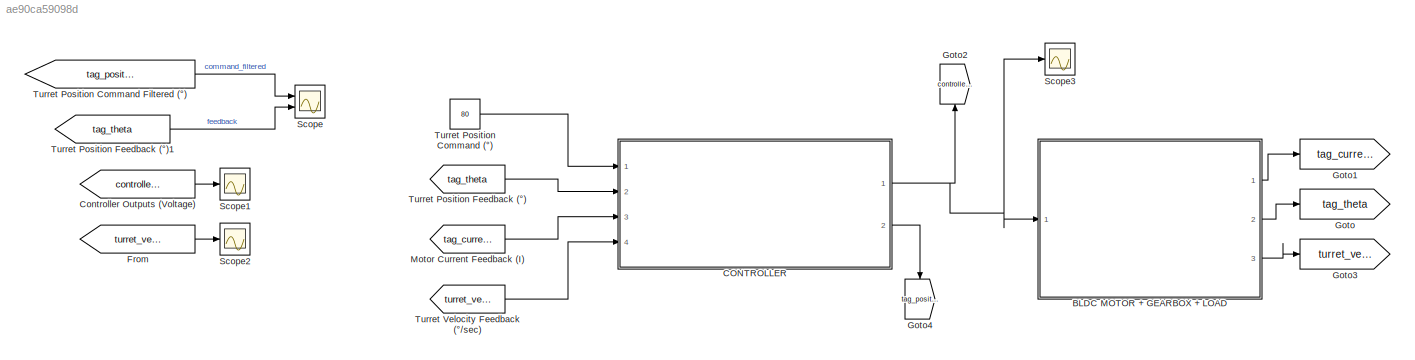
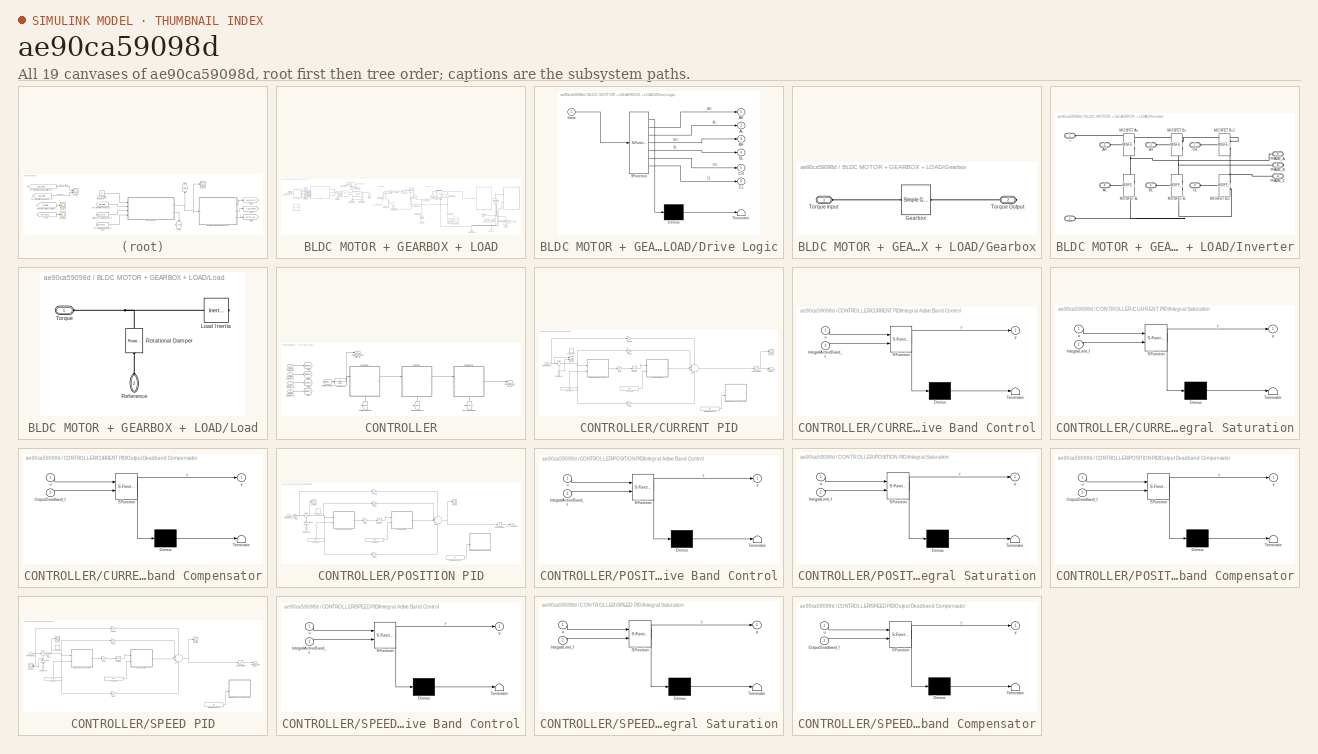
[diagram: thumbnail index - all 19 canvases of the model, root first then tree order]
MODEL slx_ae90ca59098d
KIND model
CONFIG AbsTol = auto
CONFIG EnableMultiTasking = off
CONFIG FixedStep = auto
CONFIG InitFcn = load('param_motor.mat');\nload('param_controller_2.mat');
CONFIG MaxStep = auto
CONFIG MinStep = auto
CONFIG RelTol = 1e-3
CONFIG SampleTimeConstraint = Unconstrained
CONFIG SolverName = VariableStepAuto
CONFIG StartTime = 0.0
CONFIG StopTime = 10
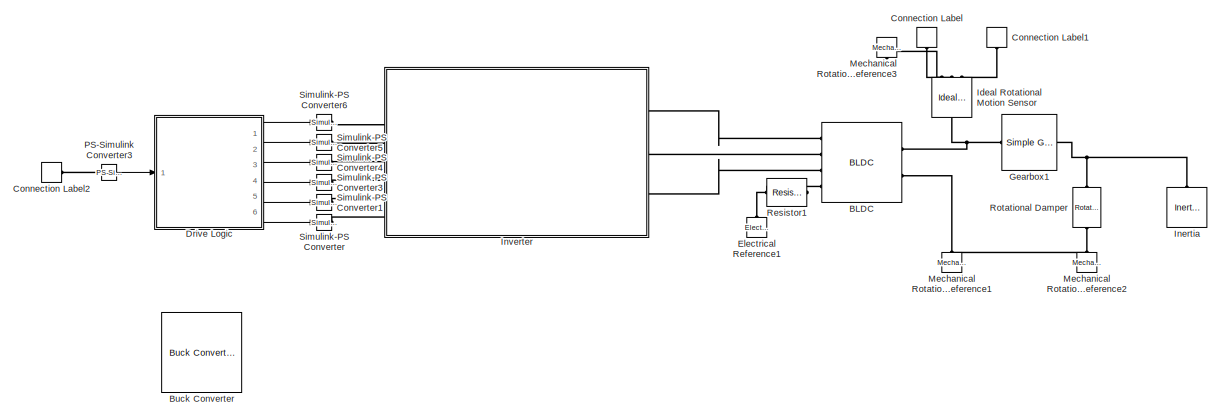
[diagram: BLDC MOTOR + GEARBOX + LOAD - part 1/3, top left region]
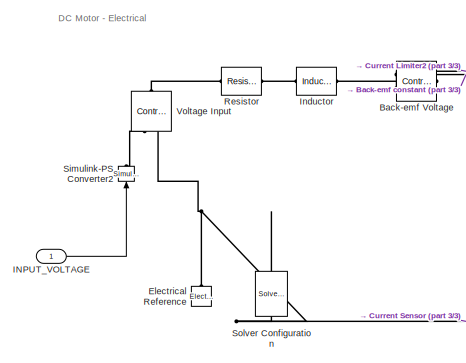
[diagram: BLDC MOTOR + GEARBOX + LOAD - part 2/3, central region]
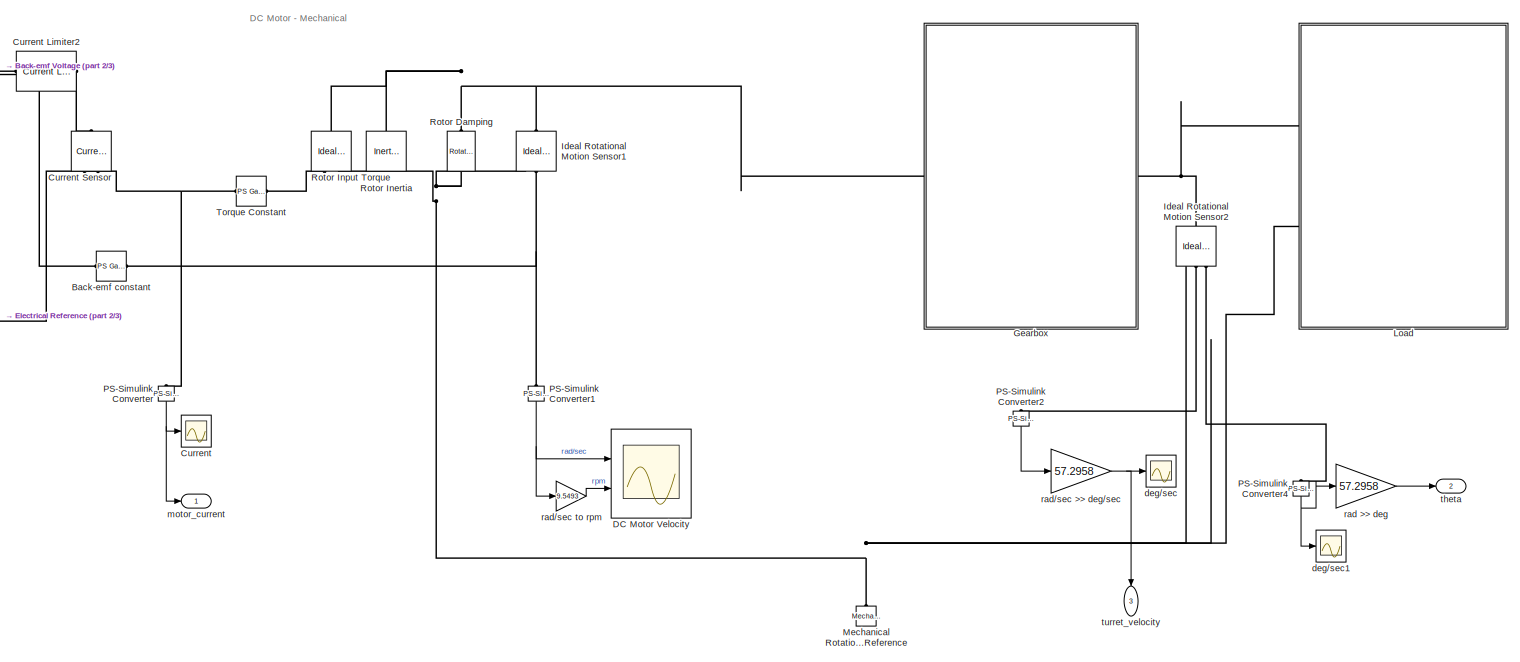
[diagram: BLDC MOTOR + GEARBOX + LOAD - part 3/3, right side, full height]
BLOCK [SubSystem] BLDC MOTOR + GEARBOX + LOAD
  Ports = [1, 3]
  RequestExecContextInheritance = off
BLOCK [Reference] BLDC MOTOR + GEARBOX + LOAD/BLDC  REF=ee_lib/Electromechanical/Permanent Magnet/BLDC
  Ports = [0, 0, 0, 0, 0, 4, 2]
  SourceBlock = ee_lib/Electromechanical/Permanent Magnet/BLDC
  SourceProductBaseCode = PS
  SourceType = BLDC
BLOCK [Reference] BLDC MOTOR + GEARBOX + LOAD/Back-emf Voltage  REF=fl_lib/Electrical/Electrical Sources/Controlled Voltage
Source
  NameLocation = top
  Ports = [0, 0, 0, 0, 0, 1, 2]
  SourceBlock = fl_lib/Electrical/Electrical Sources/Controlled Voltage\nSource
  SourceProductBaseCode = SS
  SourceType = Controlled Voltage\nSource
BLOCK [Reference] BLDC MOTOR + GEARBOX + LOAD/Back-emf constant  REF=fl_lib/Physical Signals/Functions/PS Gain
  Ports = [0, 0, 0, 0, 0, 1, 1]
  SourceBlock = fl_lib/Physical Signals/Functions/PS Gain
  SourceProductBaseCode = SS
  SourceType = PS Gain
BLOCK [Reference] BLDC MOTOR + GEARBOX + LOAD/Buck Converter  REF=ee_lib/Semiconductors &
Converters/Converters/Buck Converter
  Ports = [0, 0, 0, 0, 0, 3, 2]
  SourceBlock = ee_lib/Semiconductors &\nConverters/Converters/Buck Converter
  SourceProductBaseCode = PS
  SourceType = Buck Converter
BLOCK [ConnectionLabel] BLDC MOTOR + GEARBOX + LOAD/Connection Label
  Label = motor_omega
  NameLocation = right
  Ports = [0, 0, 0, 0, 0, 1]
BLOCK [ConnectionLabel] BLDC MOTOR + GEARBOX + LOAD/Connection Label1
  Label = motor_theta
  NameLocation = right
  Ports = [0, 0, 0, 0, 0, 1]
BLOCK [ConnectionLabel] BLDC MOTOR + GEARBOX + LOAD/Connection Label2
  Label = motor_theta
  NameLocation = top
  Ports = [0, 0, 0, 0, 0, 1]
BLOCK [Scope] BLDC MOTOR + GEARBOX + LOAD/Current
  Floating = off
  NumInputPorts = 1
  Ports = [1]
  ScopeSpecificationString = Simulink.scopes.TimeScopeBlockCfg('CurrentConfiguration', extmgr.ConfigurationSet(extmgr.Configuration('Core','General UI',true),extmgr.Configuration('Core','Source UI',true),extmgr.Configuration('Sources','WiredSimulink',true,'DataLoggingVariableName','ScopeData1'),extmgr.Configuration('Visuals','Time Domain',true,'SerializedDisplays',{struct('MinYLimReal','-21.24366','MaxYLimReal','85.31232','YL...<+1482ch>
BLOCK [Reference] BLDC MOTOR + GEARBOX + LOAD/Current Limiter2  REF=ee_lib/Semiconductors &
Converters/Current Limiter
  Ports = [0, 0, 0, 0, 0, 1, 1]
  SourceBlock = ee_lib/Semiconductors &\nConverters/Current Limiter
  SourceProductBaseCode = PS
  SourceType = Current Limiter
BLOCK [Reference] BLDC MOTOR + GEARBOX + LOAD/Current Sensor  REF=fl_lib/Electrical/Electrical Sensors/Current Sensor
  NameLocation = left
  Ports = [0, 0, 0, 0, 0, 1, 2]
  SourceBlock = fl_lib/Electrical/Electrical Sensors/Current Sensor
  SourceProductBaseCode = SS
  SourceType = Current Sensor
BLOCK [Scope] BLDC MOTOR + GEARBOX + LOAD/DC Motor Velocity
  Floating = off
  NumInputPorts = 2
  Ports = [2]
  ScopeSpecificationString = Simulink.scopes.TimeScopeBlockCfg('CurrentConfiguration', extmgr.ConfigurationSet(extmgr.Configuration('Core','General UI',true),extmgr.Configuration('Core','Source UI',true),extmgr.Configuration('Sources','WiredSimulink',true,'DataLoggingVariableName','ScopeData2'),extmgr.Configuration('Visuals','Time Domain',true,'SerializedDisplays',{struct('MinYLimReal','-309.96528','MaxYLimReal','2789.6875','...<+1413ch>
BLOCK [SubSystem] BLDC MOTOR + GEARBOX + LOAD/Drive Logic
  ErrorFcn = Stateflow.Translate.translate
  PermitHierarchicalResolution = ExplicitOnly
  Ports = [1, 6]
  RequestExecContextInheritance = off
  SFBlockType = MATLAB Function
  TreatAsAtomicUnit = on
BLOCK [Demux] BLDC MOTOR + GEARBOX + LOAD/Drive Logic/ Demux 
  Outputs = 1
  Ports = [1, 1]
BLOCK [S-Function] BLDC MOTOR + GEARBOX + LOAD/Drive Logic/ SFunction 
  EnableBusSupport = off
  FunctionName = sf_sfun
  PortCounts = [1 7]
  Ports = [1, 7]
  SFcnIsStateOwnerBlock = off
  SFunctionDeploymentMode = off
  Tag = Stateflow S-Function 10
BLOCK [Terminator] BLDC MOTOR + GEARBOX + LOAD/Drive Logic/ Terminator 
BLOCK [Outport] BLDC MOTOR + GEARBOX + LOAD/Drive Logic/AH
BLOCK [Outport] BLDC MOTOR + GEARBOX + LOAD/Drive Logic/AL
  Port = 2
BLOCK [Outport] BLDC MOTOR + GEARBOX + LOAD/Drive Logic/BH
  Port = 3
BLOCK [Outport] BLDC MOTOR + GEARBOX + LOAD/Drive Logic/BL
  Port = 4
BLOCK [Outport] BLDC MOTOR + GEARBOX + LOAD/Drive Logic/CH
  Port = 5
BLOCK [Outport] BLDC MOTOR + GEARBOX + LOAD/Drive Logic/CL
  Port = 6
BLOCK [Inport] BLDC MOTOR + GEARBOX + LOAD/Drive Logic/theta
BLOCK [Reference] BLDC MOTOR + GEARBOX + LOAD/Electrical Reference  REF=fl_lib/Electrical/Electrical Elements/Electrical Reference
  NameLocation = right
  Ports = [0, 0, 0, 0, 0, 1]
  SourceBlock = fl_lib/Electrical/Electrical Elements/Electrical Reference
  SourceProductBaseCode = SS
  SourceType = Electrical Reference
BLOCK [Reference] BLDC MOTOR + GEARBOX + LOAD/Electrical Reference1  REF=fl_lib/Electrical/Electrical Elements/Electrical Reference
  NameLocation = right
  Ports = [0, 0, 0, 0, 0, 1]
  SourceBlock = fl_lib/Electrical/Electrical Elements/Electrical Reference
  SourceProductBaseCode = SS
  SourceType = Electrical Reference
BLOCK [SubSystem] BLDC MOTOR + GEARBOX + LOAD/Gearbox
  Ports = [0, 0, 0, 0, 0, 1, 1]
  RequestExecContextInheritance = off
BLOCK [Reference] BLDC MOTOR + GEARBOX + LOAD/Gearbox/Gearbox  REF=sdl_lib/Gears/Simple Gear
  Ports = [0, 0, 0, 0, 0, 1, 1]
  SourceBlock = sdl_lib/Gears/Simple Gear
  SourceProductBaseCode = LD
  SourceType = Simple Gear
BLOCK [PMIOPort] BLDC MOTOR + GEARBOX + LOAD/Gearbox/Torque Input
  Side = Left
BLOCK [PMIOPort] BLDC MOTOR + GEARBOX + LOAD/Gearbox/Torque Output
  Port = 2
  Side = Right
BLOCK [Reference] BLDC MOTOR + GEARBOX + LOAD/Gearbox1  REF=sdl_lib/Gears/Simple Gear
  Ports = [0, 0, 0, 0, 0, 1, 1]
  SourceBlock = sdl_lib/Gears/Simple Gear
  SourceProductBaseCode = LD
  SourceType = Simple Gear
BLOCK [Inport] BLDC MOTOR + GEARBOX + LOAD/INPUT_VOLTAGE
BLOCK [Reference] BLDC MOTOR + GEARBOX + LOAD/Ideal Rotational Motion Sensor  REF=fl_lib/Mechanical/Mechanical Sensors/Ideal Rotational
Motion Sensor
  NameLocation = right
  Ports = [0, 0, 0, 0, 0, 1, 3]
  SourceBlock = fl_lib/Mechanical/Mechanical Sensors/Ideal Rotational\nMotion Sensor
  SourceProductBaseCode = SS
  SourceType = Ideal Rotational\nMotion Sensor
BLOCK [Reference] BLDC MOTOR + GEARBOX + LOAD/Ideal Rotational Motion Sensor1  REF=fl_lib/Mechanical/Mechanical Sensors/Ideal Rotational
Motion Sensor
  Ports = [0, 0, 0, 0, 0, 1, 3]
  SourceBlock = fl_lib/Mechanical/Mechanical Sensors/Ideal Rotational\nMotion Sensor
  SourceProductBaseCode = SS
  SourceType = Ideal Rotational\nMotion Sensor
BLOCK [Reference] BLDC MOTOR + GEARBOX + LOAD/Ideal Rotational Motion Sensor2  REF=fl_lib/Mechanical/Mechanical Sensors/Ideal Rotational
Motion Sensor
  Ports = [0, 0, 0, 0, 0, 1, 3]
  SourceBlock = fl_lib/Mechanical/Mechanical Sensors/Ideal Rotational\nMotion Sensor
  SourceProductBaseCode = SS
  SourceType = Ideal Rotational\nMotion Sensor
BLOCK [Reference] BLDC MOTOR + GEARBOX + LOAD/Inductor  REF=ee_lib/Passive/Inductor
  Ports = [0, 0, 0, 0, 0, 1, 1]
  SourceBlock = ee_lib/Passive/Inductor
  SourceProductBaseCode = PS
  SourceType = Inductor
BLOCK [Reference] BLDC MOTOR + GEARBOX + LOAD/Inertia  REF=fl_lib/Mechanical/Rotational Elements/Inertia
  NameLocation = right
  Ports = [0, 0, 0, 0, 0, 1]
  SourceBlock = fl_lib/Mechanical/Rotational Elements/Inertia
  SourceProductBaseCode = SS
  SourceType = Inertia
BLOCK [SubSystem] BLDC MOTOR + GEARBOX + LOAD/Inverter
  Ports = [0, 0, 0, 0, 0, 8, 3]
  RequestExecContextInheritance = off
BLOCK [PMIOPort] BLDC MOTOR + GEARBOX + LOAD/Inverter/+
  Side = Left
BLOCK [PMIOPort] BLDC MOTOR + GEARBOX + LOAD/Inverter/-
  Port = 2
  Side = Left
BLOCK [PMIOPort] BLDC MOTOR + GEARBOX + LOAD/Inverter/AH
  Port = 3
  Side = Left
BLOCK [PMIOPort] BLDC MOTOR + GEARBOX + LOAD/Inverter/AL
  Port = 4
  Side = Left
BLOCK [PMIOPort] BLDC MOTOR + GEARBOX + LOAD/Inverter/BH
  Port = 5
  Side = Left
BLOCK [PMIOPort] BLDC MOTOR + GEARBOX + LOAD/Inverter/BL
  Port = 6
  Side = Left
BLOCK [PMIOPort] BLDC MOTOR + GEARBOX + LOAD/Inverter/CH
  Port = 7
  Side = Left
BLOCK [PMIOPort] BLDC MOTOR + GEARBOX + LOAD/Inverter/CL
  Port = 8
  Side = Left
BLOCK [Reference] BLDC MOTOR + GEARBOX + LOAD/Inverter/MOSFET A+  REF=ee_lib/Semiconductors &
Converters/MOSFET
(Ideal,
Switching)
  NameLocation = top
  Ports = [0, 0, 0, 0, 0, 1, 2]
  SourceBlock = ee_lib/Semiconductors &\nConverters/MOSFET\n(Ideal,\nSwitching)
  SourceProductBaseCode = PS
  SourceType = MOSFET\n(Ideal,\nSwitching)
BLOCK [Reference] BLDC MOTOR + GEARBOX + LOAD/Inverter/MOSFET A-  REF=ee_lib/Semiconductors &
Converters/MOSFET
(Ideal,
Switching)
  Ports = [0, 0, 0, 0, 0, 1, 2]
  SourceBlock = ee_lib/Semiconductors &\nConverters/MOSFET\n(Ideal,\nSwitching)
  SourceProductBaseCode = PS
  SourceType = MOSFET\n(Ideal,\nSwitching)
BLOCK [Reference] BLDC MOTOR + GEARBOX + LOAD/Inverter/MOSFET B+  REF=ee_lib/Semiconductors &
Converters/MOSFET
(Ideal,
Switching)
  NameLocation = top
  Ports = [0, 0, 0, 0, 0, 1, 2]
  SourceBlock = ee_lib/Semiconductors &\nConverters/MOSFET\n(Ideal,\nSwitching)
  SourceProductBaseCode = PS
  SourceType = MOSFET\n(Ideal,\nSwitching)
BLOCK [Reference] BLDC MOTOR + GEARBOX + LOAD/Inverter/MOSFET B+1  REF=ee_lib/Semiconductors &
Converters/MOSFET
(Ideal,
Switching)
  NameLocation = top
  Ports = [0, 0, 0, 0, 0, 1, 2]
  SourceBlock = ee_lib/Semiconductors &\nConverters/MOSFET\n(Ideal,\nSwitching)
  SourceProductBaseCode = PS
  SourceType = MOSFET\n(Ideal,\nSwitching)
BLOCK [Reference] BLDC MOTOR + GEARBOX + LOAD/Inverter/MOSFET B-  REF=ee_lib/Semiconductors &
Converters/MOSFET
(Ideal,
Switching)
  Ports = [0, 0, 0, 0, 0, 1, 2]
  SourceBlock = ee_lib/Semiconductors &\nConverters/MOSFET\n(Ideal,\nSwitching)
  SourceProductBaseCode = PS
  SourceType = MOSFET\n(Ideal,\nSwitching)
BLOCK [Reference] BLDC MOTOR + GEARBOX + LOAD/Inverter/MOSFET B-1  REF=ee_lib/Semiconductors &
Converters/MOSFET
(Ideal,
Switching)
  Ports = [0, 0, 0, 0, 0, 1, 2]
  SourceBlock = ee_lib/Semiconductors &\nConverters/MOSFET\n(Ideal,\nSwitching)
  SourceProductBaseCode = PS
  SourceType = MOSFET\n(Ideal,\nSwitching)
BLOCK [PMIOPort] BLDC MOTOR + GEARBOX + LOAD/Inverter/PHASE_A
  Port = 9
  Side = Right
BLOCK [PMIOPort] BLDC MOTOR + GEARBOX + LOAD/Inverter/PHASE_B
  Port = 10
  Side = Right
BLOCK [PMIOPort] BLDC MOTOR + GEARBOX + LOAD/Inverter/PHASE_C
  Port = 11
  Side = Right
BLOCK [SubSystem] BLDC MOTOR + GEARBOX + LOAD/Load
  Ports = [0, 0, 0, 0, 0, 2]
  RequestExecContextInheritance = off
BLOCK [Reference] BLDC MOTOR + GEARBOX + LOAD/Load/Load Inertia  REF=fl_lib/Mechanical/Rotational Elements/Inertia
  Ports = [0, 0, 0, 0, 0, 1]
  SourceBlock = fl_lib/Mechanical/Rotational Elements/Inertia
  SourceProductBaseCode = SS
  SourceType = Inertia
BLOCK [PMIOPort] BLDC MOTOR + GEARBOX + LOAD/Load/Reference
  NameLocation = right
  Port = 2
  Side = Left
BLOCK [Reference] BLDC MOTOR + GEARBOX + LOAD/Load/Rotational Damper  REF=sdl_lib/Couplings & Drives/Springs & Dampers/Rotational Damper
  NameLocation = left
  Ports = [0, 0, 0, 0, 0, 1, 1]
  SourceBlock = sdl_lib/Couplings & Drives/Springs & Dampers/Rotational Damper
  SourceProductBaseCode = LD
  SourceType = Rotational Damper
BLOCK [PMIOPort] BLDC MOTOR + GEARBOX + LOAD/Load/Torque
  Side = Left
BLOCK [Reference] BLDC MOTOR + GEARBOX + LOAD/Mechanical Rotational Reference  REF=fl_lib/Mechanical/Rotational Elements/Mechanical
Rotational Reference
  NameLocation = right
  Ports = [0, 0, 0, 0, 0, 1]
  SourceBlock = fl_lib/Mechanical/Rotational Elements/Mechanical\nRotational Reference
  SourceProductBaseCode = SS
  SourceType = Mechanical\nRotational Reference
BLOCK [Reference] BLDC MOTOR + GEARBOX + LOAD/Mechanical Rotational Reference1  REF=fl_lib/Mechanical/Rotational Elements/Mechanical
Rotational Reference
  NameLocation = right
  Ports = [0, 0, 0, 0, 0, 1]
  SourceBlock = fl_lib/Mechanical/Rotational Elements/Mechanical\nRotational Reference
  SourceProductBaseCode = SS
  SourceType = Mechanical\nRotational Reference
BLOCK [Reference] BLDC MOTOR + GEARBOX + LOAD/Mechanical Rotational Reference2  REF=fl_lib/Mechanical/Rotational Elements/Mechanical
Rotational Reference
  NameLocation = right
  Ports = [0, 0, 0, 0, 0, 1]
  SourceBlock = fl_lib/Mechanical/Rotational Elements/Mechanical\nRotational Reference
  SourceProductBaseCode = SS
  SourceType = Mechanical\nRotational Reference
BLOCK [Reference] BLDC MOTOR + GEARBOX + LOAD/Mechanical Rotational Reference3  REF=fl_lib/Mechanical/Rotational Elements/Mechanical
Rotational Reference
  NameLocation = left
  Ports = [0, 0, 0, 0, 0, 1]
  SourceBlock = fl_lib/Mechanical/Rotational Elements/Mechanical\nRotational Reference
  SourceProductBaseCode = SS
  SourceType = Mechanical\nRotational Reference
BLOCK [Reference] BLDC MOTOR + GEARBOX + LOAD/PS-Simulink Converter  REF=nesl_utility/PS-Simulink
Converter
  NameLocation = left
  Ports = [0, 1, 0, 0, 0, 1]
  SourceBlock = nesl_utility/PS-Simulink\nConverter
  SourceProductBaseCode = PW,SS
  SourceType = PS-Simulink\nConverter
BLOCK [Reference] BLDC MOTOR + GEARBOX + LOAD/PS-Simulink Converter1  REF=nesl_utility/PS-Simulink
Converter
  NameLocation = left
  Ports = [0, 1, 0, 0, 0, 1]
  SourceBlock = nesl_utility/PS-Simulink\nConverter
  SourceProductBaseCode = PW,SS
  SourceType = PS-Simulink\nConverter
BLOCK [Reference] BLDC MOTOR + GEARBOX + LOAD/PS-Simulink Converter2  REF=nesl_utility/PS-Simulink
Converter
  NameLocation = left
  Ports = [0, 1, 0, 0, 0, 1]
  SourceBlock = nesl_utility/PS-Simulink\nConverter
  SourceProductBaseCode = PW,SS
  SourceType = PS-Simulink\nConverter
BLOCK [Reference] BLDC MOTOR + GEARBOX + LOAD/PS-Simulink Converter3  REF=nesl_utility/PS-Simulink
Converter
  Ports = [0, 1, 0, 0, 0, 1]
  SourceBlock = nesl_utility/PS-Simulink\nConverter
  SourceProductBaseCode = PW,SS
  SourceType = PS-Simulink\nConverter
BLOCK [Reference] BLDC MOTOR + GEARBOX + LOAD/PS-Simulink Converter4  REF=nesl_utility/PS-Simulink
Converter
  NameLocation = left
  Ports = [0, 1, 0, 0, 0, 1]
  SourceBlock = nesl_utility/PS-Simulink\nConverter
  SourceProductBaseCode = PW,SS
  SourceType = PS-Simulink\nConverter
BLOCK [Reference] BLDC MOTOR + GEARBOX + LOAD/Resistor  REF=fl_lib/Electrical/Electrical Elements/Resistor
  Ports = [0, 0, 0, 0, 0, 1, 1]
  SourceBlock = fl_lib/Electrical/Electrical Elements/Resistor
  SourceProductBaseCode = SS
  SourceType = Resistor
BLOCK [Reference] BLDC MOTOR + GEARBOX + LOAD/Resistor1  REF=fl_lib/Electrical/Electrical Elements/Resistor
  NameLocation = top
  Ports = [0, 0, 0, 0, 0, 1, 1]
  SourceBlock = fl_lib/Electrical/Electrical Elements/Resistor
  SourceProductBaseCode = SS
  SourceType = Resistor
BLOCK [Reference] BLDC MOTOR + GEARBOX + LOAD/Rotational Damper  REF=sdl_lib/Couplings & Drives/Springs & Dampers/Rotational Damper
  NameLocation = left
  Ports = [0, 0, 0, 0, 0, 1, 1]
  SourceBlock = sdl_lib/Couplings & Drives/Springs & Dampers/Rotational Damper
  SourceProductBaseCode = LD
  SourceType = Rotational Damper
BLOCK [Reference] BLDC MOTOR + GEARBOX + LOAD/Rotor Damping  REF=fl_lib/Mechanical/Rotational Elements/Rotational Damper
  NameLocation = top
  Ports = [0, 0, 0, 0, 0, 1, 1]
  SourceBlock = fl_lib/Mechanical/Rotational Elements/Rotational Damper
  SourceProductBaseCode = SS
  SourceType = Rotational Damper
BLOCK [Reference] BLDC MOTOR + GEARBOX + LOAD/Rotor Inertia  REF=fl_lib/Mechanical/Rotational Elements/Inertia
  Ports = [0, 0, 0, 0, 0, 1]
  SourceBlock = fl_lib/Mechanical/Rotational Elements/Inertia
  SourceProductBaseCode = SS
  SourceType = Inertia
BLOCK [Reference] BLDC MOTOR + GEARBOX + LOAD/Rotor Input Torque  REF=fl_lib/Mechanical/Mechanical Sources/Ideal Torque Source
  NameLocation = top
  Ports = [0, 0, 0, 0, 0, 1, 2]
  SourceBlock = fl_lib/Mechanical/Mechanical Sources/Ideal Torque Source
  SourceProductBaseCode = SS
  SourceType = Ideal Torque Source
BLOCK [Reference] BLDC MOTOR + GEARBOX + LOAD/Simulink-PS Converter  REF=nesl_utility/Simulink-PS
Converter
  Ports = [1, 0, 0, 0, 0, 0, 1]
  SourceBlock = nesl_utility/Simulink-PS\nConverter
  SourceProductBaseCode = PW,SS
  SourceType = Simulink-PS\nConverter
BLOCK [Reference] BLDC MOTOR + GEARBOX + LOAD/Simulink-PS Converter1  REF=nesl_utility/Simulink-PS
Converter
  Ports = [1, 0, 0, 0, 0, 0, 1]
  SourceBlock = nesl_utility/Simulink-PS\nConverter
  SourceProductBaseCode = PW,SS
  SourceType = Simulink-PS\nConverter
BLOCK [Reference] BLDC MOTOR + GEARBOX + LOAD/Simulink-PS Converter2  REF=nesl_utility/Simulink-PS
Converter
  NameLocation = right
  Ports = [1, 0, 0, 0, 0, 0, 1]
  SourceBlock = nesl_utility/Simulink-PS\nConverter
  SourceProductBaseCode = PW,SS
  SourceType = Simulink-PS\nConverter
BLOCK [Reference] BLDC MOTOR + GEARBOX + LOAD/Simulink-PS Converter3  REF=nesl_utility/Simulink-PS
Converter
  Ports = [1, 0, 0, 0, 0, 0, 1]
  SourceBlock = nesl_utility/Simulink-PS\nConverter
  SourceProductBaseCode = PW,SS
  SourceType = Simulink-PS\nConverter
BLOCK [Reference] BLDC MOTOR + GEARBOX + LOAD/Simulink-PS Converter4  REF=nesl_utility/Simulink-PS
Converter
  Ports = [1, 0, 0, 0, 0, 0, 1]
  SourceBlock = nesl_utility/Simulink-PS\nConverter
  SourceProductBaseCode = PW,SS
  SourceType = Simulink-PS\nConverter
BLOCK [Reference] BLDC MOTOR + GEARBOX + LOAD/Simulink-PS Converter5  REF=nesl_utility/Simulink-PS
Converter
  Ports = [1, 0, 0, 0, 0, 0, 1]
  SourceBlock = nesl_utility/Simulink-PS\nConverter
  SourceProductBaseCode = PW,SS
  SourceType = Simulink-PS\nConverter
BLOCK [Reference] BLDC MOTOR + GEARBOX + LOAD/Simulink-PS Converter6  REF=nesl_utility/Simulink-PS
Converter
  Ports = [1, 0, 0, 0, 0, 0, 1]
  SourceBlock = nesl_utility/Simulink-PS\nConverter
  SourceProductBaseCode = PW,SS
  SourceType = Simulink-PS\nConverter
BLOCK [Reference] BLDC MOTOR + GEARBOX + LOAD/Solver Configuration  REF=nesl_utility/Solver
Configuration
  NameLocation = right
  Ports = [0, 0, 0, 0, 0, 0, 1]
  SourceBlock = nesl_utility/Solver\nConfiguration
  SourceProductBaseCode = PW,SS
  SourceType = Solver\nConfiguration
BLOCK [Reference] BLDC MOTOR + GEARBOX + LOAD/Torque Constant  REF=fl_lib/Physical Signals/Functions/PS Gain
  Ports = [0, 0, 0, 0, 0, 1, 1]
  SourceBlock = fl_lib/Physical Signals/Functions/PS Gain
  SourceProductBaseCode = SS
  SourceType = PS Gain
BLOCK [Reference] BLDC MOTOR + GEARBOX + LOAD/Voltage Input  REF=fl_lib/Electrical/Electrical Sources/Controlled Voltage
Source
  NameLocation = right
  Ports = [0, 0, 0, 0, 0, 1, 2]
  SourceBlock = fl_lib/Electrical/Electrical Sources/Controlled Voltage\nSource
  SourceProductBaseCode = SS
  SourceType = Controlled Voltage\nSource
BLOCK [Scope] BLDC MOTOR + GEARBOX + LOAD/deg//sec
  Floating = off
  NumInputPorts = 1
  Ports = [1]
  ScopeSpecificationString = Simulink.scopes.TimeScopeBlockCfg('CurrentConfiguration', extmgr.ConfigurationSet(extmgr.Configuration('Core','General UI',true),extmgr.Configuration('Core','Source UI',true),extmgr.Configuration('Sources','WiredSimulink',true),extmgr.Configuration('Visuals','Time Domain',true,'SerializedDisplays',{struct('MinYLimReal','-11.4743','MaxYLimReal','103.26868','YLabelReal','','MinYLimMag','0.00000','Ma...<+1417ch>
BLOCK [Scope] BLDC MOTOR + GEARBOX + LOAD/deg//sec1
  Floating = off
  NumInputPorts = 1
  Ports = [1]
  ScopeSpecificationString = Simulink.scopes.TimeScopeBlockCfg('CurrentConfiguration', extmgr.ConfigurationSet(extmgr.Configuration('Core','General UI',true),extmgr.Configuration('Core','Source UI',true),extmgr.Configuration('Sources','WiredSimulink',true,'DataLoggingVariableName','ScopeData10'),extmgr.Configuration('Visuals','Time Domain',true,'SerializedDisplays',{struct('MinYLimReal','-0.15273','MaxYLimReal','1.37457','YLa...<+1453ch>
BLOCK [Outport] BLDC MOTOR + GEARBOX + LOAD/motor_current
BLOCK [Gain] BLDC MOTOR + GEARBOX + LOAD/rad >> deg
  Gain = 57.2958
BLOCK [Gain] BLDC MOTOR + GEARBOX + LOAD/rad//sec >> deg//sec
  Gain = 57.2958
BLOCK [Gain] BLDC MOTOR + GEARBOX + LOAD/rad//sec to rpm
  Gain = 9.5493
BLOCK [Outport] BLDC MOTOR + GEARBOX + LOAD/theta
  Port = 2
BLOCK [Outport] BLDC MOTOR + GEARBOX + LOAD/turret_velocity
  Port = 3
BLOCK [SubSystem] CONTROLLER
  Ports = [4, 2]
  RequestExecContextInheritance = off
BLOCK [Outport] CONTROLLER/CONTROLLER_OUTPUT
BLOCK [SubSystem] CONTROLLER/CURRENT PID
  NameLocation = top
  PortSchema = {"entries":[{"content":{"sides":[{"content":{"connectorIds":["In1"]},"type":"ConnectorPlacement.EquallySpacedRectSide","uuid":"40c65be9-b241-43d3-b74e-061528d6863f"},{"content":{"connectorIds":["Out1"],"side":"RIGHT"},"type":"ConnectorPlacement.EquallySpacedRectSide","uuid":"f0c37777-6186-40ca-93fa-111567e4da2a"},{"content":{"connectorIds":[],"side":"TOP"},"type":"ConnectorPlacement.EquallySpacedR...<+389ch>  <repeated x3 — deduplicated; at blocks: CURRENT PID, POSITION PID, SPEED PID>
  Ports = [2, 1]
  RequestExecContextInheritance = off
BLOCK [Constant] CONTROLLER/CURRENT PID/Constant
  NameLocation = right
  Value = 500
BLOCK [Constant] CONTROLLER/CURRENT PID/Constant1
  Value = 500
BLOCK [Outport] CONTROLLER/CURRENT PID/Current_Cntrl_Output
BLOCK [Gain] CONTROLLER/CURRENT PID/D-Gain
  Gain = 0
BLOCK [DeadZone] CONTROLLER/CURRENT PID/Dead Zone
BLOCK [Inport] CONTROLLER/CURRENT PID/FEEDBACK
  Port = 2
BLOCK [Gain] CONTROLLER/CURRENT PID/FF-Gain
  Gain = 0
BLOCK [Gain] CONTROLLER/CURRENT PID/I-Gain
  Gain = 0
BLOCK [SubSystem] CONTROLLER/CURRENT PID/Integral Active Band Control
  ErrorFcn = Stateflow.Translate.translate
  PermitHierarchicalResolution = ExplicitOnly
  Ports = [2, 1]
  RequestExecContextInheritance = off
  SFBlockType = MATLAB Function
  TreatAsAtomicUnit = on
BLOCK [Demux] CONTROLLER/CURRENT PID/Integral Active Band Control/ Demux 
  Outputs = 1
  Ports = [1, 1]
BLOCK [S-Function] CONTROLLER/CURRENT PID/Integral Active Band Control/ SFunction 
  EnableBusSupport = on
  FunctionName = sf_sfun
  PortCounts = [2 2]
  Ports = [2, 2]
  SFcnIsStateOwnerBlock = off
  SFunctionDeploymentMode = off
  Tag = Stateflow S-Function 7
BLOCK [Terminator] CONTROLLER/CURRENT PID/Integral Active Band Control/ Terminator 
BLOCK [Inport] CONTROLLER/CURRENT PID/Integral Active Band Control/IntegralActiveBand_f
  Port = 2
BLOCK [Inport] CONTROLLER/CURRENT PID/Integral Active Band Control/u
BLOCK [Outport] CONTROLLER/CURRENT PID/Integral Active Band Control/y
BLOCK [SubSystem] CONTROLLER/CURRENT PID/Integral Saturation
  ErrorFcn = Stateflow.Translate.translate
  PermitHierarchicalResolution = ExplicitOnly
  Ports = [2, 1]
  RequestExecContextInheritance = off
  SFBlockType = MATLAB Function
  TreatAsAtomicUnit = on
BLOCK [Demux] CONTROLLER/CURRENT PID/Integral Saturation/ Demux 
  Outputs = 1
  Ports = [1, 1]
BLOCK [S-Function] CONTROLLER/CURRENT PID/Integral Saturation/ SFunction 
  EnableBusSupport = on
  FunctionName = sf_sfun
  PortCounts = [2 2]
  Ports = [2, 2]
  SFcnIsStateOwnerBlock = off
  SFunctionDeploymentMode = off
  Tag = Stateflow S-Function 8
BLOCK [Terminator] CONTROLLER/CURRENT PID/Integral Saturation/ Terminator 
BLOCK [Inport] CONTROLLER/CURRENT PID/Integral Saturation/IntegralLimit_f
  Port = 2
BLOCK [Inport] CONTROLLER/CURRENT PID/Integral Saturation/u
BLOCK [Outport] CONTROLLER/CURRENT PID/Integral Saturation/y
BLOCK [Integrator] CONTROLLER/CURRENT PID/Integrator
  Ports = [1, 1]
BLOCK [Constant] CONTROLLER/CURRENT PID/Output Dead Zone
  Commented = on
  Value = 0.5
BLOCK [SubSystem] CONTROLLER/CURRENT PID/Output Deadband Compensator
  Commented = on
  ErrorFcn = Stateflow.Translate.translate
  PermitHierarchicalResolution = ExplicitOnly
  Ports = [2, 1]
  RequestExecContextInheritance = off
  SFBlockType = MATLAB Function
  TreatAsAtomicUnit = on
BLOCK [Demux] CONTROLLER/CURRENT PID/Output Deadband Compensator/ Demux 
  Outputs = 1
  Ports = [1, 1]
BLOCK [S-Function] CONTROLLER/CURRENT PID/Output Deadband Compensator/ SFunction 
  EnableBusSupport = on
  FunctionName = sf_sfun
  PortCounts = [2 2]
  Ports = [2, 2]
  SFcnIsStateOwnerBlock = off
  SFunctionDeploymentMode = off
  Tag = Stateflow S-Function 9
BLOCK [Terminator] CONTROLLER/CURRENT PID/Output Deadband Compensator/ Terminator 
BLOCK [Inport] CONTROLLER/CURRENT PID/Output Deadband Compensator/OutputDeadband_f
  Port = 2
BLOCK [Inport] CONTROLLER/CURRENT PID/Output Deadband Compensator/u
BLOCK [Outport] CONTROLLER/CURRENT PID/Output Deadband Compensator/y
BLOCK [Saturate] CONTROLLER/CURRENT PID/Output Saturation
  LowerLimit = -28
  UpperLimit = 28
BLOCK [Gain] CONTROLLER/CURRENT PID/P-Gain
  Gain = 2.8
BLOCK [Inport] CONTROLLER/CURRENT PID/REFERENCE
BLOCK [Scope] CONTROLLER/CURRENT PID/Scope
  Floating = off
  NumInputPorts = 2
  Ports = [2]
  ScopeSpecificationString = Simulink.scopes.TimeScopeBlockCfg('CurrentConfiguration', extmgr.ConfigurationSet(extmgr.Configuration('Core','General UI',true),extmgr.Configuration('Core','Source UI',true),extmgr.Configuration('Sources','WiredSimulink',true,'DataLoggingVariableName','ScopeData4'),extmgr.Configuration('Visuals','Time Domain',true,'SerializedDisplays',{struct('MinYLimReal','34.115','MaxYLimReal','85.534','YLabelR...<+1444ch>
BLOCK [Scope] CONTROLLER/CURRENT PID/Scope1
  Floating = off
  NumInputPorts = 1
  Ports = [1]
  ScopeSpecificationString = Simulink.scopes.TimeScopeBlockCfg('CurrentConfiguration', extmgr.ConfigurationSet(extmgr.Configuration('Core','General UI',true),extmgr.Configuration('Core','Source UI',true),extmgr.Configuration('Sources','WiredSimulink',true,'DataLoggingVariableName','ScopeData5'),extmgr.Configuration('Visuals','Time Domain',true,'SerializedDisplays',{struct('MinYLimReal','-1.31128','MaxYLimReal','11.80151','YLa...<+1403ch>
BLOCK [Sum] CONTROLLER/CURRENT PID/Sum
  Inputs = +++|+
  Ports = [4, 1]
BLOCK [Sum] CONTROLLER/CURRENT PID/Sum1
  Inputs = |+-
  Ports = [2, 1]
BLOCK [Inport] CONTROLLER/CURRENT_FEEDBACK
  Port = 3
BLOCK [From] CONTROLLER/Current Feedback
  GotoTag = CURRENT_FEEDBACK
BLOCK [Goto] CONTROLLER/Goto
  GotoTag = POSITION_COMMAND
BLOCK [Goto] CONTROLLER/Goto1
  GotoTag = POSITION_FEEDBACK
BLOCK [Goto] CONTROLLER/Goto2
  GotoTag = VELOCITY_FEEDBACK
BLOCK [Goto] CONTROLLER/Goto3
  GotoTag = CURRENT_FEEDBACK
BLOCK [SubSystem] CONTROLLER/POSITION PID
  NameLocation = top
  Ports = [2, 1]
  RequestExecContextInheritance = off
BLOCK [Constant] CONTROLLER/POSITION PID/Constant
  NameLocation = right
  Value = 500
BLOCK [Constant] CONTROLLER/POSITION PID/Constant1
  Value = 500
BLOCK [Gain] CONTROLLER/POSITION PID/D-Gain
  Gain = 0
BLOCK [DeadZone] CONTROLLER/POSITION PID/Dead Zone
  LowerValue = -0.01
  UpperValue = 0.01
BLOCK [Inport] CONTROLLER/POSITION PID/FEEDBACK
  Port = 2
BLOCK [Gain] CONTROLLER/POSITION PID/FF-Gain
  Gain = 0
BLOCK [Gain] CONTROLLER/POSITION PID/Gain
  Gain = 2*pi/360
BLOCK [Gain] CONTROLLER/POSITION PID/Gain1
  Gain = 2*pi/360
  NameLocation = right
BLOCK [Gain] CONTROLLER/POSITION PID/I-Gain
  Gain = 0
BLOCK [SubSystem] CONTROLLER/POSITION PID/Integral Active Band Control
  ErrorFcn = Stateflow.Translate.translate
  PermitHierarchicalResolution = ExplicitOnly
  Ports = [2, 1]
  RequestExecContextInheritance = off
  SFBlockType = MATLAB Function
  TreatAsAtomicUnit = on
BLOCK [Demux] CONTROLLER/POSITION PID/Integral Active Band Control/ Demux 
  Outputs = 1
  Ports = [1, 1]
BLOCK [S-Function] CONTROLLER/POSITION PID/Integral Active Band Control/ SFunction 
  EnableBusSupport = on
  FunctionName = sf_sfun
  PortCounts = [2 2]
  Ports = [2, 2]
  SFcnIsStateOwnerBlock = off
  SFunctionDeploymentMode = off
  Tag = Stateflow S-Function 4
BLOCK [Terminator] CONTROLLER/POSITION PID/Integral Active Band Control/ Terminator 
BLOCK [Inport] CONTROLLER/POSITION PID/Integral Active Band Control/IntegralActiveBand_f
  Port = 2
BLOCK [Inport] CONTROLLER/POSITION PID/Integral Active Band Control/u
BLOCK [Outport] CONTROLLER/POSITION PID/Integral Active Band Control/y
BLOCK [SubSystem] CONTROLLER/POSITION PID/Integral Saturation
  ErrorFcn = Stateflow.Translate.translate
  PermitHierarchicalResolution = ExplicitOnly
  Ports = [2, 1]
  RequestExecContextInheritance = off
  SFBlockType = MATLAB Function
  TreatAsAtomicUnit = on
BLOCK [Demux] CONTROLLER/POSITION PID/Integral Saturation/ Demux 
  Outputs = 1
  Ports = [1, 1]
BLOCK [S-Function] CONTROLLER/POSITION PID/Integral Saturation/ SFunction 
  EnableBusSupport = on
  FunctionName = sf_sfun
  PortCounts = [2 2]
  Ports = [2, 2]
  SFcnIsStateOwnerBlock = off
  SFunctionDeploymentMode = off
  Tag = Stateflow S-Function 5
BLOCK [Terminator] CONTROLLER/POSITION PID/Integral Saturation/ Terminator 
BLOCK [Inport] CONTROLLER/POSITION PID/Integral Saturation/IntegralLimit_f
  Port = 2
BLOCK [Inport] CONTROLLER/POSITION PID/Integral Saturation/u
BLOCK [Outport] CONTROLLER/POSITION PID/Integral Saturation/y
BLOCK [Integrator] CONTROLLER/POSITION PID/Integrator
  Ports = [1, 1]
BLOCK [Constant] CONTROLLER/POSITION PID/Output Dead Zone
  Commented = on
  Value = 0.1
BLOCK [SubSystem] CONTROLLER/POSITION PID/Output Deadband Compensator
  Commented = on
  ErrorFcn = Stateflow.Translate.translate
  PermitHierarchicalResolution = ExplicitOnly
  Ports = [2, 1]
  RequestExecContextInheritance = off
  SFBlockType = MATLAB Function
  TreatAsAtomicUnit = on
BLOCK [Demux] CONTROLLER/POSITION PID/Output Deadband Compensator/ Demux 
  Outputs = 1
  Ports = [1, 1]
BLOCK [S-Function] CONTROLLER/POSITION PID/Output Deadband Compensator/ SFunction 
  EnableBusSupport = on
  FunctionName = sf_sfun
  PortCounts = [2 2]
  Ports = [2, 2]
  SFcnIsStateOwnerBlock = off
  SFunctionDeploymentMode = off
  Tag = Stateflow S-Function 6
BLOCK [Terminator] CONTROLLER/POSITION PID/Output Deadband Compensator/ Terminator 
BLOCK [Inport] CONTROLLER/POSITION PID/Output Deadband Compensator/OutputDeadband_f
  Port = 2
BLOCK [Inport] CONTROLLER/POSITION PID/Output Deadband Compensator/u
BLOCK [Outport] CONTROLLER/POSITION PID/Output Deadband Compensator/y
BLOCK [Saturate] CONTROLLER/POSITION PID/Output Saturation
  LowerLimit = -1.57
  UpperLimit = 1.57
BLOCK [Gain] CONTROLLER/POSITION PID/P-Gain
  Gain = 0.5
BLOCK [Outport] CONTROLLER/POSITION PID/Pos_Cntrl_Output
BLOCK [Inport] CONTROLLER/POSITION PID/REFERENCE
BLOCK [Scope] CONTROLLER/POSITION PID/Scope
  Floating = off
  NumInputPorts = 1
  Ports = [1]
  ScopeSpecificationString = Simulink.scopes.TimeScopeBlockCfg('CurrentConfiguration', extmgr.ConfigurationSet(extmgr.Configuration('Core','General UI',true),extmgr.Configuration('Core','Source UI',true),extmgr.Configuration('Sources','WiredSimulink',true,'DataLoggingVariableName','ScopeData4'),extmgr.Configuration('Visuals','Time Domain',true,'SerializedDisplays',{struct('MinYLimReal','-0.06554','MaxYLimReal','0.78298','YLab...<+1460ch>
BLOCK [Scope] CONTROLLER/POSITION PID/Scope1
  Floating = off
  NumInputPorts = 1
  Ports = [1]
  ScopeSpecificationString = Simulink.scopes.TimeScopeBlockCfg('CurrentConfiguration', extmgr.ConfigurationSet(extmgr.Configuration('Core','General UI',true),extmgr.Configuration('Core','Source UI',true),extmgr.Configuration('Sources','WiredSimulink',true,'DataLoggingVariableName','ScopeData1'),extmgr.Configuration('Visuals','Time Domain',true,'SerializedDisplays',{struct('MinYLimReal','-0.12209','MaxYLimReal','1.09883','YLab...<+1463ch>
BLOCK [Sum] CONTROLLER/POSITION PID/Sum
  Inputs = +++|+
  Ports = [4, 1]
BLOCK [Sum] CONTROLLER/POSITION PID/Sum1
  Inputs = |+-
  Ports = [2, 1]
BLOCK [Inport] CONTROLLER/POSITION_COMMAND
BLOCK [Inport] CONTROLLER/POSITION_FEEDBACK
  Port = 2
BLOCK [From] CONTROLLER/Position Command
  GotoTag = POSITION_COMMAND
BLOCK [Outport] CONTROLLER/Position Command (Filtered)
  Port = 2
BLOCK [From] CONTROLLER/Position Feedback
  GotoTag = POSITION_FEEDBACK
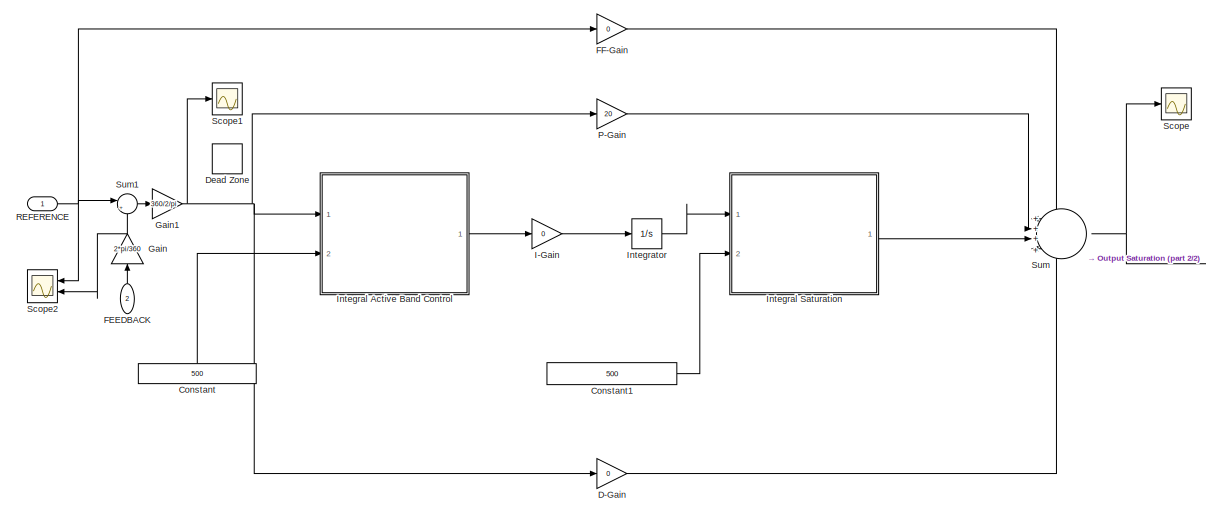
[diagram: CONTROLLER/SPEED PID - part 1/2, most of the canvas]
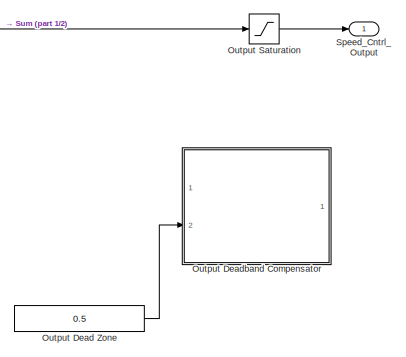
[diagram: CONTROLLER/SPEED PID - part 2/2, bottom right region]
BLOCK [SubSystem] CONTROLLER/SPEED PID
  NameLocation = top
  Ports = [2, 1]
  RequestExecContextInheritance = off
BLOCK [Constant] CONTROLLER/SPEED PID/Constant
  NameLocation = right
  Value = 500
BLOCK [Constant] CONTROLLER/SPEED PID/Constant1
  Value = 500
BLOCK [Gain] CONTROLLER/SPEED PID/D-Gain
  Gain = 0
BLOCK [DeadZone] CONTROLLER/SPEED PID/Dead Zone
  LowerValue = -0.1
  UpperValue = 0.1
BLOCK [Inport] CONTROLLER/SPEED PID/FEEDBACK
  Port = 2
BLOCK [Gain] CONTROLLER/SPEED PID/FF-Gain
  Gain = 0
BLOCK [Gain] CONTROLLER/SPEED PID/Gain
  Gain = 2*pi/360
  NameLocation = right
BLOCK [Gain] CONTROLLER/SPEED PID/Gain1
  Gain = 360/2/pi
BLOCK [Gain] CONTROLLER/SPEED PID/I-Gain
  Gain = 0
BLOCK [SubSystem] CONTROLLER/SPEED PID/Integral Active Band Control
  ErrorFcn = Stateflow.Translate.translate
  PermitHierarchicalResolution = ExplicitOnly
  Ports = [2, 1]
  RequestExecContextInheritance = off
  SFBlockType = MATLAB Function
  TreatAsAtomicUnit = on
BLOCK [Demux] CONTROLLER/SPEED PID/Integral Active Band Control/ Demux 
  Outputs = 1
  Ports = [1, 1]
BLOCK [S-Function] CONTROLLER/SPEED PID/Integral Active Band Control/ SFunction 
  EnableBusSupport = on
  FunctionName = sf_sfun
  PortCounts = [2 2]
  Ports = [2, 2]
  SFcnIsStateOwnerBlock = off
  SFunctionDeploymentMode = off
  Tag = Stateflow S-Function 1
BLOCK [Terminator] CONTROLLER/SPEED PID/Integral Active Band Control/ Terminator 
BLOCK [Inport] CONTROLLER/SPEED PID/Integral Active Band Control/IntegralActiveBand_f
  Port = 2
BLOCK [Inport] CONTROLLER/SPEED PID/Integral Active Band Control/u
BLOCK [Outport] CONTROLLER/SPEED PID/Integral Active Band Control/y
BLOCK [SubSystem] CONTROLLER/SPEED PID/Integral Saturation
  ErrorFcn = Stateflow.Translate.translate
  PermitHierarchicalResolution = ExplicitOnly
  Ports = [2, 1]
  RequestExecContextInheritance = off
  SFBlockType = MATLAB Function
  TreatAsAtomicUnit = on
BLOCK [Demux] CONTROLLER/SPEED PID/Integral Saturation/ Demux 
  Outputs = 1
  Ports = [1, 1]
BLOCK [S-Function] CONTROLLER/SPEED PID/Integral Saturation/ SFunction 
  EnableBusSupport = on
  FunctionName = sf_sfun
  PortCounts = [2 2]
  Ports = [2, 2]
  SFcnIsStateOwnerBlock = off
  SFunctionDeploymentMode = off
  Tag = Stateflow S-Function 2
BLOCK [Terminator] CONTROLLER/SPEED PID/Integral Saturation/ Terminator 
BLOCK [Inport] CONTROLLER/SPEED PID/Integral Saturation/IntegralLimit_f
  Port = 2
BLOCK [Inport] CONTROLLER/SPEED PID/Integral Saturation/u
BLOCK [Outport] CONTROLLER/SPEED PID/Integral Saturation/y
BLOCK [Integrator] CONTROLLER/SPEED PID/Integrator
  Ports = [1, 1]
BLOCK [Constant] CONTROLLER/SPEED PID/Output Dead Zone
  Commented = on
  Value = 0.5
BLOCK [SubSystem] CONTROLLER/SPEED PID/Output Deadband Compensator
  Commented = on
  ErrorFcn = Stateflow.Translate.translate
  PermitHierarchicalResolution = ExplicitOnly
  Ports = [2, 1]
  RequestExecContextInheritance = off
  SFBlockType = MATLAB Function
  TreatAsAtomicUnit = on
BLOCK [Demux] CONTROLLER/SPEED PID/Output Deadband Compensator/ Demux 
  Outputs = 1
  Ports = [1, 1]
BLOCK [S-Function] CONTROLLER/SPEED PID/Output Deadband Compensator/ SFunction 
  EnableBusSupport = on
  FunctionName = sf_sfun
  PortCounts = [2 2]
  Ports = [2, 2]
  SFcnIsStateOwnerBlock = off
  SFunctionDeploymentMode = off
  Tag = Stateflow S-Function 3
BLOCK [Terminator] CONTROLLER/SPEED PID/Output Deadband Compensator/ Terminator 
BLOCK [Inport] CONTROLLER/SPEED PID/Output Deadband Compensator/OutputDeadband_f
  Port = 2
BLOCK [Inport] CONTROLLER/SPEED PID/Output Deadband Compensator/u
BLOCK [Outport] CONTROLLER/SPEED PID/Output Deadband Compensator/y
BLOCK [Saturate] CONTROLLER/SPEED PID/Output Saturation
  LowerLimit = -80
  UpperLimit = 80
BLOCK [Gain] CONTROLLER/SPEED PID/P-Gain
  Gain = 20
BLOCK [Inport] CONTROLLER/SPEED PID/REFERENCE
BLOCK [Scope] CONTROLLER/SPEED PID/Scope
  Floating = off
  NumInputPorts = 1
  Ports = [1]
  ScopeSpecificationString = Simulink.scopes.TimeScopeBlockCfg('CurrentConfiguration', extmgr.ConfigurationSet(extmgr.Configuration('Core','General UI',true),extmgr.Configuration('Core','Source UI',true),extmgr.Configuration('Sources','WiredSimulink',true,'DataLoggingVariableName','ScopeData4'),extmgr.Configuration('Visuals','Time Domain',true,'SerializedDisplays',{struct('MinYLimReal','-11.89434','MaxYLimReal','101.70596','Y...<+1372ch>
BLOCK [Scope] CONTROLLER/SPEED PID/Scope1
  Floating = off
  NumInputPorts = 1
  Ports = [1]
  ScopeSpecificationString = Simulink.scopes.TimeScopeBlockCfg('CurrentConfiguration', extmgr.ConfigurationSet(extmgr.Configuration('Core','General UI',true),extmgr.Configuration('Core','Source UI',true),extmgr.Configuration('Sources','WiredSimulink',true,'DataLoggingVariableName','ScopeData3'),extmgr.Configuration('Visuals','Time Domain',true,'SerializedDisplays',{struct('MinYLimReal','-0.59472','MaxYLimReal','5.0853','YLabe...<+1383ch>
BLOCK [Scope] CONTROLLER/SPEED PID/Scope2
  Floating = off
  NameLocation = top
  NumInputPorts = 2
  Ports = [2]
  ScopeSpecificationString = Simulink.scopes.TimeScopeBlockCfg('CurrentConfiguration', extmgr.ConfigurationSet(extmgr.Configuration('Core','General UI',true),extmgr.Configuration('Core','Source UI',true),extmgr.Configuration('Sources','WiredSimulink',true,'DataLoggingVariableName','ScopeData5'),extmgr.Configuration('Visuals','Time Domain',true,'SerializedDisplays',{struct('MinYLimReal','-0.07504','MaxYLimReal','0.6754','YLabe...<+1371ch>
BLOCK [Outport] CONTROLLER/SPEED PID/Speed_Cntrl_Output
BLOCK [Sum] CONTROLLER/SPEED PID/Sum
  Inputs = +++|+
  Ports = [4, 1]
BLOCK [Sum] CONTROLLER/SPEED PID/Sum1
  Inputs = |+-
  Ports = [2, 1]
BLOCK [TransferFcn] CONTROLLER/Transfer Fcn
  Denominator = [0.1 1]
BLOCK [Inport] CONTROLLER/VELOCITY_FEEDBACK
  Port = 4
BLOCK [From] CONTROLLER/Velocity Feedback
  GotoTag = VELOCITY_FEEDBACK
BLOCK [From] Controller Outputs (Voltage)
  GotoTag = controller_output
BLOCK [From] From
  GotoTag = turret_velocity
BLOCK [Goto] Goto
  GotoTag = tag_theta
BLOCK [Goto] Goto1
  GotoTag = tag_current
BLOCK [Goto] Goto2
  GotoTag = controller_output
  NameLocation = right
BLOCK [Goto] Goto3
  GotoTag = turret_velocity
BLOCK [Goto] Goto4
  GotoTag = tag_position_command_filtered
  NameLocation = left
BLOCK [From] Motor Current Feedback (I)
  GotoTag = tag_current
BLOCK [Scope] Scope
  Floating = off
  NumInputPorts = 2
  Ports = [2]
  ScopeSpecificationString = Simulink.scopes.TimeScopeBlockCfg('CurrentConfiguration', extmgr.ConfigurationSet(extmgr.Configuration('Core','General UI',true),extmgr.Configuration('Core','Source UI',true),extmgr.Configuration('Sources','WiredSimulink',true,'DataLoggingVariableName','ScopeData1'),extmgr.Configuration('Visuals','Time Domain',true,'SerializedDisplays',{struct('MinYLimReal','-9.72333','MaxYLimReal','87.50994','YLa...<+1508ch>
BLOCK [Scope] Scope1
  Floating = off
  NumInputPorts = 1
  Ports = [1]
  ScopeSpecificationString = Simulink.scopes.TimeScopeBlockCfg('CurrentConfiguration', extmgr.ConfigurationSet(extmgr.Configuration('Core','General UI',true),extmgr.Configuration('Core','Source UI',true),extmgr.Configuration('Sources','WiredSimulink',true,'DataLoggingVariableName','ScopeData2'),extmgr.Configuration('Visuals','Time Domain',true,'SerializedDisplays',{struct('MinYLimReal','-2.9375','MaxYLimReal','31.4375','YLabe...<+1402ch>
BLOCK [Scope] Scope2
  Floating = off
  NumInputPorts = 1
  Ports = [1]
  ScopeSpecificationString = Simulink.scopes.TimeScopeBlockCfg('CurrentConfiguration', extmgr.ConfigurationSet(extmgr.Configuration('Core','General UI',true),extmgr.Configuration('Core','Source UI',true),extmgr.Configuration('Sources','WiredSimulink',true,'DataLoggingVariableName','ScopeData3'),extmgr.Configuration('Visuals','Time Domain',true,'SerializedDisplays',{struct('MinYLimReal','-34.8808','MaxYLimReal','105.86892','YL...<+1396ch>
BLOCK [Scope] Scope3
  Floating = off
  NumInputPorts = 1
  Ports = [1]
  ScopeSpecificationString = Simulink.scopes.TimeScopeBlockCfg('CurrentConfiguration', extmgr.ConfigurationSet(extmgr.Configuration('Core','General UI',true),extmgr.Configuration('Core','Source UI',true),extmgr.Configuration('Sources','WiredSimulink',true,'DataLoggingVariableName','ScopeData2'),extmgr.Configuration('Visuals','Time Domain',true,'SerializedDisplays',{struct('MinYLimReal','-1.31128','MaxYLimReal','11.80151','YLa...<+1375ch>
BLOCK [Constant] Turret Position Command (°)
  Value = 80
BLOCK [From] Turret Position Command Filtered (°)
  GotoTag = tag_position_command_filtered
BLOCK [From] Turret Position Feedback (°)
  GotoTag = tag_theta
BLOCK [From] Turret Position Feedback (°)1
  GotoTag = tag_theta
BLOCK [From] Turret Velocity Feedback (°//sec)
  GotoTag = turret_velocity
ANNOTATION BLDC MOTOR + GEARBOX + LOAD: DC Motor - Electrical
ANNOTATION BLDC MOTOR + GEARBOX + LOAD: DC Motor - Mechanical
LINE BLDC MOTOR + GEARBOX + LOAD/Drive Logic:1 -> BLDC MOTOR + GEARBOX + LOAD/Simulink-PS Converter6:1
LINE BLDC MOTOR + GEARBOX + LOAD/Drive Logic:2 -> BLDC MOTOR + GEARBOX + LOAD/Simulink-PS Converter5:1
LINE BLDC MOTOR + GEARBOX + LOAD/Drive Logic:3 -> BLDC MOTOR + GEARBOX + LOAD/Simulink-PS Converter4:1
LINE BLDC MOTOR + GEARBOX + LOAD/Drive Logic:4 -> BLDC MOTOR + GEARBOX + LOAD/Simulink-PS Converter3:1
LINE BLDC MOTOR + GEARBOX + LOAD/Drive Logic:5 -> BLDC MOTOR + GEARBOX + LOAD/Simulink-PS Converter1:1
LINE BLDC MOTOR + GEARBOX + LOAD/Drive Logic:6 -> BLDC MOTOR + GEARBOX + LOAD/Simulink-PS Converter:1
LINE BLDC MOTOR + GEARBOX + LOAD/INPUT_VOLTAGE:1 -> BLDC MOTOR + GEARBOX + LOAD/Simulink-PS Converter2:1
NET BLDC MOTOR + GEARBOX + LOAD/PS-Simulink Converter1:1 -> BLDC MOTOR + GEARBOX + LOAD/DC Motor Velocity:1, BLDC MOTOR + GEARBOX + LOAD/rad//sec to rpm:1
LINE BLDC MOTOR + GEARBOX + LOAD/PS-Simulink Converter2:1 -> BLDC MOTOR + GEARBOX + LOAD/rad//sec >> deg//sec:1
LINE BLDC MOTOR + GEARBOX + LOAD/PS-Simulink Converter3:1 -> BLDC MOTOR + GEARBOX + LOAD/Drive Logic:1
NET BLDC MOTOR + GEARBOX + LOAD/PS-Simulink Converter4:1 -> BLDC MOTOR + GEARBOX + LOAD/deg//sec1:1, BLDC MOTOR + GEARBOX + LOAD/rad >> deg:1
NET BLDC MOTOR + GEARBOX + LOAD/PS-Simulink Converter:1 -> BLDC MOTOR + GEARBOX + LOAD/Current:1, BLDC MOTOR + GEARBOX + LOAD/motor_current:1
LINE BLDC MOTOR + GEARBOX + LOAD/rad >> deg:1 -> BLDC MOTOR + GEARBOX + LOAD/theta:1
NET BLDC MOTOR + GEARBOX + LOAD/rad//sec >> deg//sec:1 -> BLDC MOTOR + GEARBOX + LOAD/deg//sec:1, BLDC MOTOR + GEARBOX + LOAD/turret_velocity:1
LINE BLDC MOTOR + GEARBOX + LOAD/rad//sec to rpm:1 -> BLDC MOTOR + GEARBOX + LOAD/DC Motor Velocity:2
LINE BLDC MOTOR + GEARBOX + LOAD:1 -> Goto1:1
LINE BLDC MOTOR + GEARBOX + LOAD:2 -> Goto:1
LINE BLDC MOTOR + GEARBOX + LOAD:3 -> Goto3:1
LINE CONTROLLER/CURRENT PID/Constant1:1 -> CONTROLLER/CURRENT PID/Integral Saturation:2
LINE CONTROLLER/CURRENT PID/Constant:1 -> CONTROLLER/CURRENT PID/Integral Active Band Control:2
LINE CONTROLLER/CURRENT PID/D-Gain:1 -> CONTROLLER/CURRENT PID/Sum:4
NET CONTROLLER/CURRENT PID/FEEDBACK:1 -> CONTROLLER/CURRENT PID/Scope:2, CONTROLLER/CURRENT PID/Sum1:2
LINE CONTROLLER/CURRENT PID/FF-Gain:1 -> CONTROLLER/CURRENT PID/Sum:1
LINE CONTROLLER/CURRENT PID/I-Gain:1 -> CONTROLLER/CURRENT PID/Integrator:1
LINE CONTROLLER/CURRENT PID/Integral Active Band Control:1 -> CONTROLLER/CURRENT PID/I-Gain:1
LINE CONTROLLER/CURRENT PID/Integral Saturation:1 -> CONTROLLER/CURRENT PID/Sum:3
LINE CONTROLLER/CURRENT PID/Integrator:1 -> CONTROLLER/CURRENT PID/Integral Saturation:1
LINE CONTROLLER/CURRENT PID/Output Dead Zone:1 -> CONTROLLER/CURRENT PID/Output Deadband Compensator:2
NET CONTROLLER/CURRENT PID/Output Saturation:1 -> CONTROLLER/CURRENT PID/Current_Cntrl_Output:1, CONTROLLER/CURRENT PID/Scope1:1
LINE CONTROLLER/CURRENT PID/P-Gain:1 -> CONTROLLER/CURRENT PID/Sum:2
NET CONTROLLER/CURRENT PID/REFERENCE:1 -> CONTROLLER/CURRENT PID/FF-Gain:1, CONTROLLER/CURRENT PID/Scope:1, CONTROLLER/CURRENT PID/Sum1:1
NET CONTROLLER/CURRENT PID/Sum1:1 -> CONTROLLER/CURRENT PID/D-Gain:1, CONTROLLER/CURRENT PID/Integral Active Band Control:1, CONTROLLER/CURRENT PID/P-Gain:1
LINE CONTROLLER/CURRENT PID/Sum:1 -> CONTROLLER/CURRENT PID/Output Saturation:1
LINE CONTROLLER/CURRENT PID:1 -> CONTROLLER/CONTROLLER_OUTPUT:1
LINE CONTROLLER/CURRENT_FEEDBACK:1 -> CONTROLLER/Goto3:1
LINE CONTROLLER/Current Feedback:1 -> CONTROLLER/CURRENT PID:2
LINE CONTROLLER/POSITION PID/Constant1:1 -> CONTROLLER/POSITION PID/Integral Saturation:2
LINE CONTROLLER/POSITION PID/Constant:1 -> CONTROLLER/POSITION PID/Integral Active Band Control:2
LINE CONTROLLER/POSITION PID/D-Gain:1 -> CONTROLLER/POSITION PID/Sum:4
LINE CONTROLLER/POSITION PID/FEEDBACK:1 -> CONTROLLER/POSITION PID/Gain1:1
LINE CONTROLLER/POSITION PID/FF-Gain:1 -> CONTROLLER/POSITION PID/Sum:1
LINE CONTROLLER/POSITION PID/Gain1:1 -> CONTROLLER/POSITION PID/Sum1:2
NET CONTROLLER/POSITION PID/Gain:1 -> CONTROLLER/POSITION PID/FF-Gain:1, CONTROLLER/POSITION PID/Sum1:1
LINE CONTROLLER/POSITION PID/I-Gain:1 -> CONTROLLER/POSITION PID/Integrator:1
LINE CONTROLLER/POSITION PID/Integral Active Band Control:1 -> CONTROLLER/POSITION PID/I-Gain:1
LINE CONTROLLER/POSITION PID/Integral Saturation:1 -> CONTROLLER/POSITION PID/Sum:3
LINE CONTROLLER/POSITION PID/Integrator:1 -> CONTROLLER/POSITION PID/Integral Saturation:1
LINE CONTROLLER/POSITION PID/Output Dead Zone:1 -> CONTROLLER/POSITION PID/Output Deadband Compensator:2
LINE CONTROLLER/POSITION PID/Output Saturation:1 -> CONTROLLER/POSITION PID/Pos_Cntrl_Output:1
LINE CONTROLLER/POSITION PID/P-Gain:1 -> CONTROLLER/POSITION PID/Sum:2
LINE CONTROLLER/POSITION PID/REFERENCE:1 -> CONTROLLER/POSITION PID/Gain:1
NET CONTROLLER/POSITION PID/Sum1:1 -> CONTROLLER/POSITION PID/D-Gain:1, CONTROLLER/POSITION PID/Integral Active Band Control:1, CONTROLLER/POSITION PID/P-Gain:1, CONTROLLER/POSITION PID/Scope1:1
NET CONTROLLER/POSITION PID/Sum:1 -> CONTROLLER/POSITION PID/Output Saturation:1, CONTROLLER/POSITION PID/Scope:1
LINE CONTROLLER/POSITION PID:1 -> CONTROLLER/SPEED PID:1
LINE CONTROLLER/POSITION_COMMAND:1 -> CONTROLLER/Goto:1
LINE CONTROLLER/POSITION_FEEDBACK:1 -> CONTROLLER/Goto1:1
LINE CONTROLLER/Position Command:1 -> CONTROLLER/Transfer Fcn:1
LINE CONTROLLER/Position Feedback:1 -> CONTROLLER/POSITION PID:2
LINE CONTROLLER/SPEED PID/Constant1:1 -> CONTROLLER/SPEED PID/Integral Saturation:2
LINE CONTROLLER/SPEED PID/Constant:1 -> CONTROLLER/SPEED PID/Integral Active Band Control:2
LINE CONTROLLER/SPEED PID/D-Gain:1 -> CONTROLLER/SPEED PID/Sum:4
LINE CONTROLLER/SPEED PID/FEEDBACK:1 -> CONTROLLER/SPEED PID/Gain:1
LINE CONTROLLER/SPEED PID/FF-Gain:1 -> CONTROLLER/SPEED PID/Sum:1
NET CONTROLLER/SPEED PID/Gain1:1 -> CONTROLLER/SPEED PID/D-Gain:1, CONTROLLER/SPEED PID/Integral Active Band Control:1, CONTROLLER/SPEED PID/P-Gain:1, CONTROLLER/SPEED PID/Scope1:1
NET CONTROLLER/SPEED PID/Gain:1 -> CONTROLLER/SPEED PID/Scope2:2, CONTROLLER/SPEED PID/Sum1:2
LINE CONTROLLER/SPEED PID/I-Gain:1 -> CONTROLLER/SPEED PID/Integrator:1
LINE CONTROLLER/SPEED PID/Integral Active Band Control:1 -> CONTROLLER/SPEED PID/I-Gain:1
LINE CONTROLLER/SPEED PID/Integral Saturation:1 -> CONTROLLER/SPEED PID/Sum:3
LINE CONTROLLER/SPEED PID/Integrator:1 -> CONTROLLER/SPEED PID/Integral Saturation:1
LINE CONTROLLER/SPEED PID/Output Dead Zone:1 -> CONTROLLER/SPEED PID/Output Deadband Compensator:2
LINE CONTROLLER/SPEED PID/Output Saturation:1 -> CONTROLLER/SPEED PID/Speed_Cntrl_Output:1
LINE CONTROLLER/SPEED PID/P-Gain:1 -> CONTROLLER/SPEED PID/Sum:2
NET CONTROLLER/SPEED PID/REFERENCE:1 -> CONTROLLER/SPEED PID/FF-Gain:1, CONTROLLER/SPEED PID/Scope2:1, CONTROLLER/SPEED PID/Sum1:1
LINE CONTROLLER/SPEED PID/Sum1:1 -> CONTROLLER/SPEED PID/Gain1:1
NET CONTROLLER/SPEED PID/Sum:1 -> CONTROLLER/SPEED PID/Output Saturation:1, CONTROLLER/SPEED PID/Scope:1
LINE CONTROLLER/SPEED PID:1 -> CONTROLLER/CURRENT PID:1
NET CONTROLLER/Transfer Fcn:1 -> CONTROLLER/POSITION PID:1, CONTROLLER/Position Command (Filtered):1
LINE CONTROLLER/VELOCITY_FEEDBACK:1 -> CONTROLLER/Goto2:1
LINE CONTROLLER/Velocity Feedback:1 -> CONTROLLER/SPEED PID:2
NET CONTROLLER:1 -> BLDC MOTOR + GEARBOX + LOAD:1, Goto2:1, Scope3:1
LINE CONTROLLER:2 -> Goto4:1
LINE Controller Outputs (Voltage):1 -> Scope1:1
LINE From:1 -> Scope2:1
LINE Motor Current Feedback (I):1 -> CONTROLLER:3
LINE Turret Position Command (°):1 -> CONTROLLER:1
LINE Turret Position Command Filtered (°):1 -> Scope:1
LINE Turret Position Feedback (°)1:1 -> Scope:2
LINE Turret Position Feedback (°):1 -> CONTROLLER:2
LINE Turret Velocity Feedback (°//sec):1 -> CONTROLLER:4
PLINE BLDC MOTOR + GEARBOX + LOAD/BLDC:LConn1 -- BLDC MOTOR + GEARBOX + LOAD/Inverter:RConn1
PLINE BLDC MOTOR + GEARBOX + LOAD/BLDC:LConn2 -- BLDC MOTOR + GEARBOX + LOAD/Inverter:RConn2
PLINE BLDC MOTOR + GEARBOX + LOAD/BLDC:LConn3 -- BLDC MOTOR + GEARBOX + LOAD/Inverter:RConn3
PLINE BLDC MOTOR + GEARBOX + LOAD/BLDC:LConn4 -- BLDC MOTOR + GEARBOX + LOAD/Resistor1:LConn1
PNET net1: BLDC MOTOR + GEARBOX + LOAD/BLDC:RConn1 -- BLDC MOTOR + GEARBOX + LOAD/Gearbox1:LConn1 -- BLDC MOTOR + GEARBOX + LOAD/Ideal Rotational Motion Sensor:LConn1
PNET net2: BLDC MOTOR + GEARBOX + LOAD/BLDC:RConn2 -- BLDC MOTOR + GEARBOX + LOAD/Mechanical Rotational Reference1:LConn1 -- BLDC MOTOR + GEARBOX + LOAD/Mechanical Rotational Reference2:LConn1 -- BLDC MOTOR + GEARBOX + LOAD/Rotational Damper:RConn1
PLINE BLDC MOTOR + GEARBOX + LOAD/Back-emf Voltage:LConn1 -- BLDC MOTOR + GEARBOX + LOAD/Inductor:RConn1
PLINE BLDC MOTOR + GEARBOX + LOAD/Back-emf Voltage:RConn1 -- BLDC MOTOR + GEARBOX + LOAD/Back-emf constant:RConn1
PLINE BLDC MOTOR + GEARBOX + LOAD/Back-emf Voltage:RConn2 -- BLDC MOTOR + GEARBOX + LOAD/Current Limiter2:LConn1
PNET net3: BLDC MOTOR + GEARBOX + LOAD/Back-emf constant:LConn1 -- BLDC MOTOR + GEARBOX + LOAD/Ideal Rotational Motion Sensor1:RConn2 -- BLDC MOTOR + GEARBOX + LOAD/PS-Simulink Converter1:LConn1
PLINE BLDC MOTOR + GEARBOX + LOAD/Connection Label1:LConn1 -- BLDC MOTOR + GEARBOX + LOAD/Ideal Rotational Motion Sensor:RConn3
PLINE BLDC MOTOR + GEARBOX + LOAD/Connection Label2:LConn1 -- BLDC MOTOR + GEARBOX + LOAD/PS-Simulink Converter3:LConn1
PLINE BLDC MOTOR + GEARBOX + LOAD/Connection Label:LConn1 -- BLDC MOTOR + GEARBOX + LOAD/Ideal Rotational Motion Sensor:RConn2
PLINE BLDC MOTOR + GEARBOX + LOAD/Current Limiter2:RConn1 -- BLDC MOTOR + GEARBOX + LOAD/Current Sensor:LConn1
PNET net4: BLDC MOTOR + GEARBOX + LOAD/Current Sensor:RConn1 -- BLDC MOTOR + GEARBOX + LOAD/PS-Simulink Converter:LConn1 -- BLDC MOTOR + GEARBOX + LOAD/Torque Constant:LConn1
PNET net5: BLDC MOTOR + GEARBOX + LOAD/Current Sensor:RConn2 -- BLDC MOTOR + GEARBOX + LOAD/Electrical Reference:LConn1 -- BLDC MOTOR + GEARBOX + LOAD/Solver Configuration:RConn1 -- BLDC MOTOR + GEARBOX + LOAD/Voltage Input:RConn2
PLINE BLDC MOTOR + GEARBOX + LOAD/Electrical Reference1:LConn1 -- BLDC MOTOR + GEARBOX + LOAD/Resistor1:RConn1
PLINE BLDC MOTOR + GEARBOX + LOAD/Gearbox/Gearbox:LConn1 -- BLDC MOTOR + GEARBOX + LOAD/Gearbox/Torque Input:RConn1
PLINE BLDC MOTOR + GEARBOX + LOAD/Gearbox/Gearbox:RConn1 -- BLDC MOTOR + GEARBOX + LOAD/Gearbox/Torque Output:RConn1
PNET net6: BLDC MOTOR + GEARBOX + LOAD/Gearbox1:RConn1 -- BLDC MOTOR + GEARBOX + LOAD/Inertia:LConn1 -- BLDC MOTOR + GEARBOX + LOAD/Rotational Damper:LConn1
PNET net7: BLDC MOTOR + GEARBOX + LOAD/Gearbox:LConn1 -- BLDC MOTOR + GEARBOX + LOAD/Ideal Rotational Motion Sensor1:LConn1 -- BLDC MOTOR + GEARBOX + LOAD/Rotor Damping:LConn1 -- BLDC MOTOR + GEARBOX + LOAD/Rotor Inertia:LConn1 -- BLDC MOTOR + GEARBOX + LOAD/Rotor Input Torque:LConn1
PNET net8: BLDC MOTOR + GEARBOX + LOAD/Gearbox:RConn1 -- BLDC MOTOR + GEARBOX + LOAD/Ideal Rotational Motion Sensor2:LConn1 -- BLDC MOTOR + GEARBOX + LOAD/Load:LConn1
PNET net9: BLDC MOTOR + GEARBOX + LOAD/Ideal Rotational Motion Sensor1:RConn1 -- BLDC MOTOR + GEARBOX + LOAD/Ideal Rotational Motion Sensor2:RConn1 -- BLDC MOTOR + GEARBOX + LOAD/Load:LConn2 -- BLDC MOTOR + GEARBOX + LOAD/Mechanical Rotational Reference:LConn1 -- BLDC MOTOR + GEARBOX + LOAD/Rotor Damping:RConn1 -- BLDC MOTOR + GEARBOX + LOAD/Rotor Input Torque:RConn2
PLINE BLDC MOTOR + GEARBOX + LOAD/Ideal Rotational Motion Sensor2:RConn2 -- BLDC MOTOR + GEARBOX + LOAD/PS-Simulink Converter2:LConn1
PLINE BLDC MOTOR + GEARBOX + LOAD/Ideal Rotational Motion Sensor2:RConn3 -- BLDC MOTOR + GEARBOX + LOAD/PS-Simulink Converter4:LConn1
PLINE BLDC MOTOR + GEARBOX + LOAD/Ideal Rotational Motion Sensor:RConn1 -- BLDC MOTOR + GEARBOX + LOAD/Mechanical Rotational Reference3:LConn1
PLINE BLDC MOTOR + GEARBOX + LOAD/Inductor:LConn1 -- BLDC MOTOR + GEARBOX + LOAD/Resistor:RConn1
PNET net10: BLDC MOTOR + GEARBOX + LOAD/Inverter/+:RConn1 -- BLDC MOTOR + GEARBOX + LOAD/Inverter/MOSFET A+:RConn1 -- BLDC MOTOR + GEARBOX + LOAD/Inverter/MOSFET B+1:RConn1 -- BLDC MOTOR + GEARBOX + LOAD/Inverter/MOSFET B+:RConn1
PNET net11: BLDC MOTOR + GEARBOX + LOAD/Inverter/-:RConn1 -- BLDC MOTOR + GEARBOX + LOAD/Inverter/MOSFET A-:RConn2 -- BLDC MOTOR + GEARBOX + LOAD/Inverter/MOSFET B-1:RConn2 -- BLDC MOTOR + GEARBOX + LOAD/Inverter/MOSFET B-:RConn2
PLINE BLDC MOTOR + GEARBOX + LOAD/Inverter/AH:RConn1 -- BLDC MOTOR + GEARBOX + LOAD/Inverter/MOSFET A+:LConn1
PLINE BLDC MOTOR + GEARBOX + LOAD/Inverter/AL:RConn1 -- BLDC MOTOR + GEARBOX + LOAD/Inverter/MOSFET A-:LConn1
PLINE BLDC MOTOR + GEARBOX + LOAD/Inverter/BH:RConn1 -- BLDC MOTOR + GEARBOX + LOAD/Inverter/MOSFET B+:LConn1
PLINE BLDC MOTOR + GEARBOX + LOAD/Inverter/BL:RConn1 -- BLDC MOTOR + GEARBOX + LOAD/Inverter/MOSFET B-:LConn1
PLINE BLDC MOTOR + GEARBOX + LOAD/Inverter/CH:RConn1 -- BLDC MOTOR + GEARBOX + LOAD/Inverter/MOSFET B+1:LConn1
PLINE BLDC MOTOR + GEARBOX + LOAD/Inverter/CL:RConn1 -- BLDC MOTOR + GEARBOX + LOAD/Inverter/MOSFET B-1:LConn1
PNET net12: BLDC MOTOR + GEARBOX + LOAD/Inverter/MOSFET A+:RConn2 -- BLDC MOTOR + GEARBOX + LOAD/Inverter/MOSFET A-:RConn1 -- BLDC MOTOR + GEARBOX + LOAD/Inverter/PHASE_A:RConn1
PNET net13: BLDC MOTOR + GEARBOX + LOAD/Inverter/MOSFET B+1:RConn2 -- BLDC MOTOR + GEARBOX + LOAD/Inverter/MOSFET B-1:RConn1 -- BLDC MOTOR + GEARBOX + LOAD/Inverter/PHASE_C:RConn1
PNET net14: BLDC MOTOR + GEARBOX + LOAD/Inverter/MOSFET B+:RConn2 -- BLDC MOTOR + GEARBOX + LOAD/Inverter/MOSFET B-:RConn1 -- BLDC MOTOR + GEARBOX + LOAD/Inverter/PHASE_B:RConn1
PLINE BLDC MOTOR + GEARBOX + LOAD/Inverter:LConn3 -- BLDC MOTOR + GEARBOX + LOAD/Simulink-PS Converter6:RConn1
PLINE BLDC MOTOR + GEARBOX + LOAD/Inverter:LConn4 -- BLDC MOTOR + GEARBOX + LOAD/Simulink-PS Converter5:RConn1
PLINE BLDC MOTOR + GEARBOX + LOAD/Inverter:LConn5 -- BLDC MOTOR + GEARBOX + LOAD/Simulink-PS Converter4:RConn1
PLINE BLDC MOTOR + GEARBOX + LOAD/Inverter:LConn6 -- BLDC MOTOR + GEARBOX + LOAD/Simulink-PS Converter3:RConn1
PLINE BLDC MOTOR + GEARBOX + LOAD/Inverter:LConn7 -- BLDC MOTOR + GEARBOX + LOAD/Simulink-PS Converter1:RConn1
PLINE BLDC MOTOR + GEARBOX + LOAD/Inverter:LConn8 -- BLDC MOTOR + GEARBOX + LOAD/Simulink-PS Converter:RConn1
PNET net15: BLDC MOTOR + GEARBOX + LOAD/Load/Load Inertia:LConn1 -- BLDC MOTOR + GEARBOX + LOAD/Load/Rotational Damper:LConn1 -- BLDC MOTOR + GEARBOX + LOAD/Load/Torque:RConn1
PLINE BLDC MOTOR + GEARBOX + LOAD/Load/Reference:RConn1 -- BLDC MOTOR + GEARBOX + LOAD/Load/Rotational Damper:RConn1
PLINE BLDC MOTOR + GEARBOX + LOAD/Resistor:LConn1 -- BLDC MOTOR + GEARBOX + LOAD/Voltage Input:LConn1
PLINE BLDC MOTOR + GEARBOX + LOAD/Rotor Input Torque:RConn1 -- BLDC MOTOR + GEARBOX + LOAD/Torque Constant:RConn1
PLINE BLDC MOTOR + GEARBOX + LOAD/Simulink-PS Converter2:RConn1 -- BLDC MOTOR + GEARBOX + LOAD/Voltage Input:RConn1
note: NET lines group one-source signal fan-out (src -> all destinations, sorted); 1:1 wires keep LINE; PNET lines group multi-terminal physical nets as a canonical sorted terminal list (undirected conserving connections); 2-terminal nets keep the pairwise PLINE form
CHART CONTROLLER/SPEED PID/Integral Active Band Control states=1 transitions=1
  STATE_LABEL 'eML_blk_kernel()'
  STATE_LABEL 'SCRIPT:\nfunction y = IntegralActiveBandControl(u, IntegralActiveBand_f)\n    if abs(u) <= IntegralActiveBand_f\n        y = u;\n    else\n        y = 0;\n    end\nend\n'
CHART CONTROLLER/SPEED PID/Integral Saturation states=1 transitions=1
  STATE_LABEL 'eML_blk_kernel()'
  STATE_LABEL 'SCRIPT:\nfunction y = IntegralSaturation(u, IntegralLimit_f)\n    if u==0\n        multiplier = 1;\n    else\n        multiplier = floor(u/abs(u));\n    end\n    if abs(u) < IntegralLimit_f\n        y = u;\n    else\n        y = IntegralLimit_f * multiplier;\n    end\nend\n'  <repeated x3 — deduplicated; at blocks: Integral Saturation>
CHART CONTROLLER/SPEED PID/Output Deadband Compensator states=1 transitions=1
  STATE_LABEL 'eML_blk_kernel()'
  STATE_LABEL 'SCRIPT:\nfunction y = Output_Deadband_Compensator(u, OutputDeadband_f)\n    if u==0\n        multiplier = 1;\n    else\n        multiplier = floor(u/abs(u));\n    end\n    if abs(u) == 0\n        y = 0;\n    else\n        y = u + OutputDeadband_f * multiplier;\n    end\nend\n'  <repeated x3 — deduplicated; at blocks: Output Deadband Compensator>
CHART CONTROLLER/POSITION PID/Integral Active Band Control states=1 transitions=1
  STATE_LABEL 'eML_blk_kernel()'
  STATE_LABEL 'SCRIPT:\nfunction y = IntegralActiveBandControl(u, IntegralActiveBand_f)\n    if abs(u) <= IntegralActiveBand_f\n        y = u;\n    else\n        y = 0;\n    end\nend\n'
CHART CONTROLLER/POSITION PID/Integral Saturation states=1 transitions=1
  STATE_LABEL 'eML_blk_kernel()'
CHART CONTROLLER/POSITION PID/Output Deadband Compensator states=1 transitions=1
  STATE_LABEL 'eML_blk_kernel()'
CHART CONTROLLER/CURRENT PID/Integral Active Band Control states=1 transitions=1
  STATE_LABEL 'eML_blk_kernel()'
  STATE_LABEL 'SCRIPT:\nfunction y = IntegralActiveBandControl(u, IntegralActiveBand_f)\n    if abs(u) <= IntegralActiveBand_f\n        y = u;\n    else\n        y = 0;\n    end\nend\n'
CHART CONTROLLER/CURRENT PID/Integral Saturation states=1 transitions=1
  STATE_LABEL 'eML_blk_kernel()'
CHART CONTROLLER/CURRENT PID/Output Deadband Compensator states=1 transitions=1
  STATE_LABEL 'eML_blk_kernel()'
CHART BLDC MOTOR + GEARBOX + LOAD/Drive Logic states=1 transitions=1
  STATE_LABEL 'eML_blk_kernel()'
  STATE_LABEL 'SCRIPT:\nfunction [AH,AL,BH,BL,CH,CL] = fun_driveLogic(theta)\n    AH = 0;AL = 0;BH = 0;BL = 0;CH = 0;CL = 0;\n    if theta>=0 && theta<60\n        AH = 1;\n        BL = 1;\n    elseif theta>=60 && theta<120\n        AH = 1;\n        CL = 1;\n    elseif theta>=120 && theta<180\n        BH = 1;\n        CL = 0;\n    elseif theta>=180 && theta<240\n        AL = 1;\n        BH = 1;\n    elseif theta>=240 && theta<3...<+115ch>'
CHART  states=0 transitions=0
CHART  states=0 transitions=0
CHART  states=0 transitions=0
CHART  states=0 transitions=0
CHART  states=0 transitions=0
CHART  states=0 transitions=0
CHART  states=0 transitions=0
CHART  states=0 transitions=0
CHART  states=0 transitions=0
CHART  states=0 transitions=0
